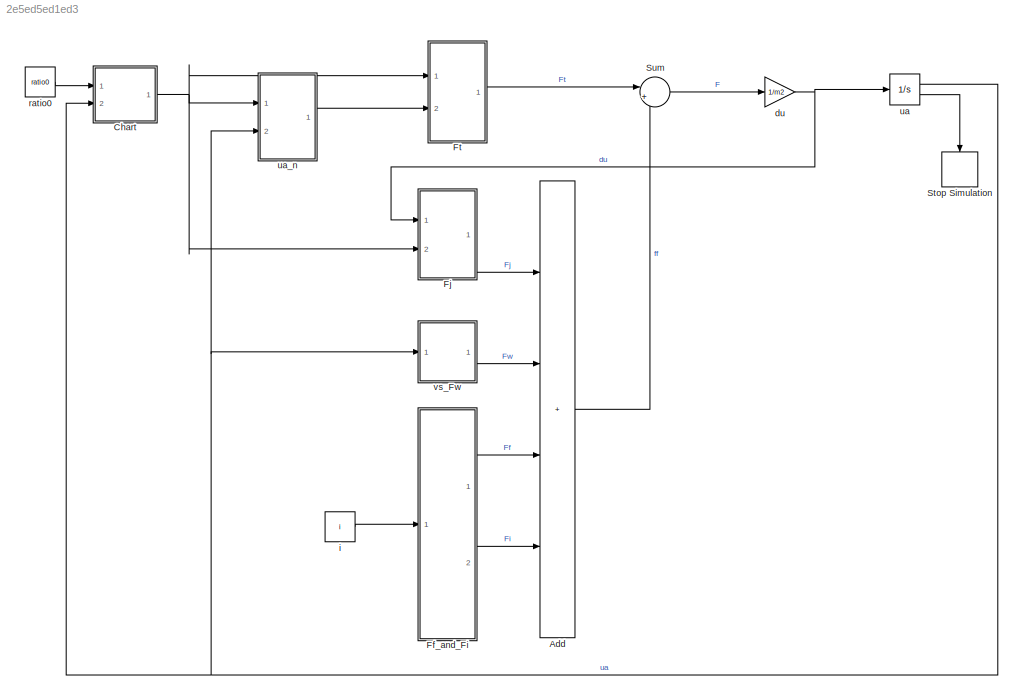
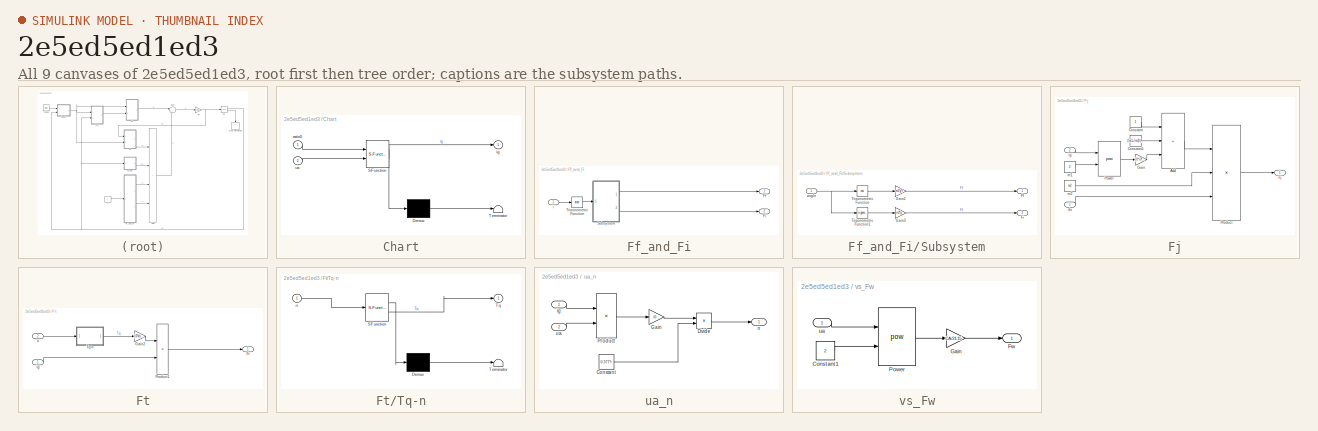
[diagram: thumbnail index - all 9 canvases of the model, root first then tree order]
MODEL slx_2e5ed5ed1ed3
KIND model
CONFIG AbsTol = auto
CONFIG EnableMultiTasking = off
CONFIG FixedStep = auto
CONFIG MaxStep = auto
CONFIG MinStep = auto
CONFIG RelTol = 1e-3
CONFIG SampleTimeConstraint = Unconstrained
CONFIG SolverName = VariableStepAuto
CONFIG StartTime = 0.0
CONFIG StopTime = inf
WORKSPACE source: mxarray member
WORKSPACE ratio0 = 2
WORKSPACE ua0 = 4.608
WORKSPACE ua_max = 70
BLOCK [Sum] Add
  IconShape = rectangular
  Inputs = ++++
  Ports = [4, 1]
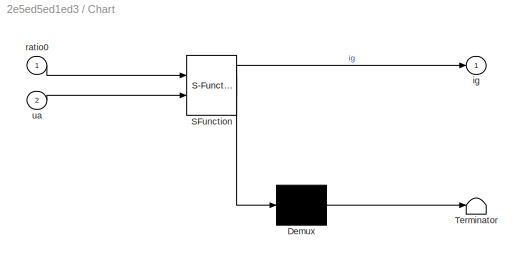
BLOCK [SubSystem] Chart
  ErrorFcn = Stateflow.Translate.translate
  PermitHierarchicalResolution = ExplicitOnly
  Ports = [2, 1]
  RequestExecContextInheritance = off
  SFBlockType = Chart
  TreatAsAtomicUnit = on
BLOCK [Demux] Chart/ Demux 
  Outputs = 1
  Ports = [1, 1]
BLOCK [S-Function] Chart/ SFunction 
  EnableBusSupport = on
  FunctionName = sf_sfun
  PortCounts = [2 2]
  Ports = [2, 2]
  SFcnIsStateOwnerBlock = off
  SFunctionDeploymentMode = off
  Tag = Stateflow S-Function 3
BLOCK [Terminator] Chart/ Terminator 
BLOCK [Outport] Chart/ig
BLOCK [Inport] Chart/ratio0
BLOCK [Inport] Chart/ua
  Port = 2
BLOCK [SubSystem] Ff_and_Fi
  Ports = [1, 2]
  RequestExecContextInheritance = off
BLOCK [Outport] Ff_and_Fi/Ff
BLOCK [Outport] Ff_and_Fi/Fi
  Port = 2
BLOCK [SubSystem] Ff_and_Fi/Subsystem
  Ports = [1, 2]
  RequestExecContextInheritance = off
BLOCK [Outport] Ff_and_Fi/Subsystem/Ff
BLOCK [Outport] Ff_and_Fi/Subsystem/Fi
  Port = 2
BLOCK [Gain] Ff_and_Fi/Subsystem/Gain2
  Gain = m2*g*f
BLOCK [Gain] Ff_and_Fi/Subsystem/Gain3
  Gain = m2*g
BLOCK [Trigonometry] Ff_and_Fi/Subsystem/Trigonometric Function
  Operator = cos
  Ports = [1, 1]
BLOCK [Trigonometry] Ff_and_Fi/Subsystem/Trigonometric Function1
  Ports = [1, 1]
BLOCK [Inport] Ff_and_Fi/Subsystem/angle
BLOCK [Trigonometry] Ff_and_Fi/Trigonometric Function
  Operator = atan
  Ports = [1, 1]
BLOCK [Inport] Ff_and_Fi/i
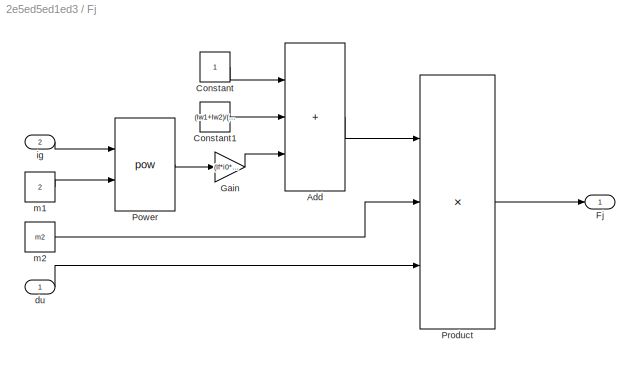
BLOCK [SubSystem] Fj
  Ports = [2, 1]
  RequestExecContextInheritance = off
BLOCK [Sum] Fj/Add
  IconShape = rectangular
  Inputs = +++
  Ports = [3, 1]
BLOCK [Constant] Fj/Constant
BLOCK [Constant] Fj/Constant1
  Value = (Iw1+Iw2)/(m2*r*r)
BLOCK [Outport] Fj/Fj
BLOCK [Gain] Fj/Gain
  Gain = (If*i0*i0*kt)/(m2*r*r)
BLOCK [Math] Fj/Power
  Operator = pow
  Ports = [2, 1]
BLOCK [Product] Fj/Product
  Inputs = 3
  Ports = [3, 1]
BLOCK [Inport] Fj/du
BLOCK [Inport] Fj/ig
  Port = 2
BLOCK [Constant] Fj/m1
  Value = 2
BLOCK [Constant] Fj/m2
  Value = m2
BLOCK [SubSystem] Ft
  Ports = [2, 1]
  RequestExecContextInheritance = off
BLOCK [Outport] Ft/Ft
BLOCK [Gain] Ft/Gain2
  Gain = (i0*kt)/r
BLOCK [Product] Ft/Product1
  Ports = [2, 1]
BLOCK [SubSystem] Ft/Tq-n
  ErrorFcn = Stateflow.Translate.translate
  PermitHierarchicalResolution = ExplicitOnly
  Ports = [1, 1]
  RequestExecContextInheritance = off
  SFBlockType = MATLAB Function
  TreatAsAtomicUnit = on
BLOCK [Demux] Ft/Tq-n/ Demux 
  Outputs = 1
  Ports = [1, 1]
BLOCK [S-Function] Ft/Tq-n/ SFunction 
  EnableBusSupport = on
  FunctionName = sf_sfun
  PortCounts = [1 2]
  Ports = [1, 2]
  SFcnIsStateOwnerBlock = off
  SFunctionDeploymentMode = off
  Tag = Stateflow S-Function 1
BLOCK [Terminator] Ft/Tq-n/ Terminator 
BLOCK [Outport] Ft/Tq-n/Tq
  VectorParamsAs1DForOutWhenUnconnected = off
BLOCK [Inport] Ft/Tq-n/n
BLOCK [Inport] Ft/ig
BLOCK [Inport] Ft/n
  Port = 2
BLOCK [Stop] Stop Simulation
  NameLocation = left
BLOCK [Sum] Sum
  Inputs = |+-
  Ports = [2, 1]
BLOCK [Gain] du
  Gain = 1/m2
BLOCK [Constant] i
  Value = i
BLOCK [Constant] ratio0
  Value = ratio0
BLOCK [Integrator] ua
  InitialCondition = ua0
  LimitOutput = on
  LowerSaturationLimit = 0
  Ports = [1, 2]
  ShowSaturationPort = on
  UpperSaturationLimit = ua_max
BLOCK [SubSystem] ua_n
  Ports = [2, 1]
  RequestExecContextInheritance = off
BLOCK [Constant] ua_n/Constant
  Value = 0.377*r
BLOCK [Product] ua_n/Divide
  Inputs = */
  Ports = [2, 1]
BLOCK [Gain] ua_n/Gain
  Gain = i0
BLOCK [Product] ua_n/Product
  Ports = [2, 1]
BLOCK [Inport] ua_n/ig
BLOCK [Outport] ua_n/n
BLOCK [Inport] ua_n/ua
  Port = 2
BLOCK [SubSystem] vs_Fw
  Ports = [1, 1]
  RequestExecContextInheritance = off
BLOCK [Constant] vs_Fw/Constant1
  Value = 2
BLOCK [Outport] vs_Fw/Fw
BLOCK [Gain] vs_Fw/Gain
  Gain = CA/21.15
BLOCK [Math] vs_Fw/Power
  Operator = pow
  Ports = [2, 1]
BLOCK [Inport] vs_Fw/ua
LINE Add:1 -> Sum:2
NET Chart:1 -> Fj:2, Ft:1, ua_n:1
LINE Ff_and_Fi/Subsystem/Gain2:1 -> Ff_and_Fi/Subsystem/Ff:1
LINE Ff_and_Fi/Subsystem/Gain3:1 -> Ff_and_Fi/Subsystem/Fi:1
LINE Ff_and_Fi/Subsystem/Trigonometric Function1:1 -> Ff_and_Fi/Subsystem/Gain3:1
LINE Ff_and_Fi/Subsystem/Trigonometric Function:1 -> Ff_and_Fi/Subsystem/Gain2:1
NET Ff_and_Fi/Subsystem/angle:1 -> Ff_and_Fi/Subsystem/Trigonometric Function1:1, Ff_and_Fi/Subsystem/Trigonometric Function:1
LINE Ff_and_Fi/Subsystem:1 -> Ff_and_Fi/Ff:1
LINE Ff_and_Fi/Subsystem:2 -> Ff_and_Fi/Fi:1
LINE Ff_and_Fi/Trigonometric Function:1 -> Ff_and_Fi/Subsystem:1
LINE Ff_and_Fi/i:1 -> Ff_and_Fi/Trigonometric Function:1
LINE Ff_and_Fi:1 -> Add:3
LINE Ff_and_Fi:2 -> Add:4
LINE Fj/Add:1 -> Fj/Product:1
LINE Fj/Constant1:1 -> Fj/Add:2
LINE Fj/Constant:1 -> Fj/Add:1
LINE Fj/Gain:1 -> Fj/Add:3
LINE Fj/Power:1 -> Fj/Gain:1
LINE Fj/Product:1 -> Fj/Fj:1
LINE Fj/du:1 -> Fj/Product:3
LINE Fj/ig:1 -> Fj/Power:1
LINE Fj/m1:1 -> Fj/Power:2
LINE Fj/m2:1 -> Fj/Product:2
LINE Fj:1 -> Add:1
LINE Ft/Gain2:1 -> Ft/Product1:1
LINE Ft/Product1:1 -> Ft/Ft:1
LINE Ft/Tq-n:1 -> Ft/Gain2:1
LINE Ft/ig:1 -> Ft/Product1:2
LINE Ft/n:1 -> Ft/Tq-n:1
LINE Ft:1 -> Sum:1
LINE Sum:1 -> du:1
NET du:1 -> Fj:1, ua:1
LINE i:1 -> Ff_and_Fi:1
LINE ratio0:1 -> Chart:1
NET ua:1 -> Chart:2, ua_n:2, vs_Fw:1
LINE ua:2 -> Stop Simulation:1
LINE ua_n/Constant:1 -> ua_n/Divide:2
LINE ua_n/Divide:1 -> ua_n/n:1
LINE ua_n/Gain:1 -> ua_n/Divide:1
LINE ua_n/Product:1 -> ua_n/Gain:1
LINE ua_n/ig:1 -> ua_n/Product:1
LINE ua_n/ua:1 -> ua_n/Product:2
LINE ua_n:1 -> Ft:2
LINE vs_Fw/Constant1:1 -> vs_Fw/Power:2
LINE vs_Fw/Gain:1 -> vs_Fw/Fw:1
LINE vs_Fw/Power:1 -> vs_Fw/Gain:1
LINE vs_Fw/ua:1 -> vs_Fw/Power:1
LINE vs_Fw:1 -> Add:2
note: NET lines group one-source signal fan-out (src -> all destinations, sorted); 1:1 wires keep LINE
CHART Ft/Tq-n states=1 transitions=1
  STATE_LABEL 'eML_blk_kernel()'
  STATE_LABEL 'SCRIPT:\nfunction Tq = fcn(n)\n%#codegen\n\nTq = -19.313+295.27*(n/1000)-165.44*(n/1000)^2+40.874*(n/1000)^3-3.8445*(n/1000)^4;'
CHART Chart states=7 transitions=16
  STATE_LABEL 'ratio1\nen:\nig=6.09'
  STATE_LABEL 'ratio2\nen:\nig=3.09'
  STATE_LABEL 'ratio3\nen:\nig=1.71'
  STATE_LABEL 'ratio4\nen:\nig=1'
  STATE_LABEL 'ratio2_2\nen:\nig=3.09'
  STATE_LABEL 'ratio2_3\nen:\nig=1.71'
  STATE_LABEL 'ratio2_4\nen:\nig=1'
CHART  states=0 transitions=0
CHART  states=0 transitions=0
